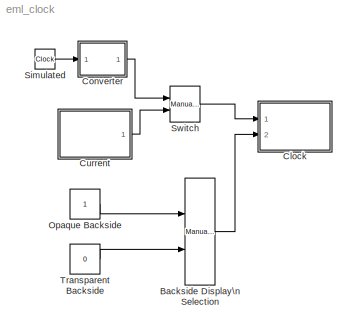
MODEL eml_clock
KIND model
CONFIG StopFcn = obj = findobj( 'Tag', 'emlclock_fig');\nif ~isempty(obj),\n   close(obj);\nend;
BLOCK [Reference] Backside Display\nSelection  REF=simulink/Signal\nRouting/Manual Switch
  Ports = [2, 1]
  ShowPortLabels = on
  SourceBlock = simulink/Signal\nRouting/Manual Switch
  SourceType = Manual Switch
  action = 0
  sw = 1
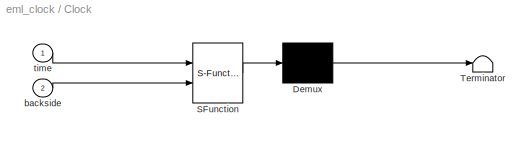
BLOCK [SubSystem] Clock
  MaskDescription = Embedded MATLAB block
  MaskDisplay = disp('emlclock');
  MaskIconFrame = on
  MaskIconOpaque = off
  MaskIconRotate = none
  MaskIconUnits = autoscale
  MaskSelfModifiable = on
  MaskType = Stateflow
  MinAlgLoopOccurrences = off
  Ports = [2]
  PropExecContextAcrossSSBoundary = on
  RTWSystemCode = Auto
  TreatAsAtomicUnit = off
BLOCK [Demux] Clock/ Demux 
  Outputs = 1
  Ports = [1, 1]
BLOCK [S-Function] Clock/ SFunction 
  FunctionName = sf_sfun
  PortCounts = [2 1]
  Ports = [2, 1]
  Tag = Stateflow S-Function eml_clock 2
BLOCK [Terminator] Clock/ Terminator 
BLOCK [Inport] Clock/backside
  IconDisplay = Port number
  LatchInput = off
  Port = 2
BLOCK [Inport] Clock/time
  IconDisplay = Port number
  LatchInput = off
  Port = 1
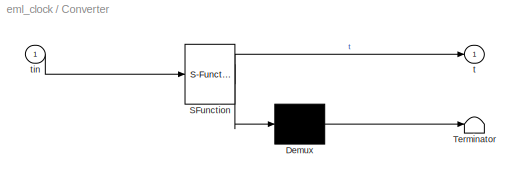
BLOCK [SubSystem] Converter
  MaskDescription = Embedded MATLAB block
  MaskDisplay = disp('conv');
  MaskIconFrame = on
  MaskIconOpaque = off
  MaskIconRotate = none
  MaskIconUnits = autoscale
  MaskSelfModifiable = on
  MaskType = Stateflow
  MinAlgLoopOccurrences = off
  Ports = [1, 1]
  PropExecContextAcrossSSBoundary = on
  RTWSystemCode = Auto
  TreatAsAtomicUnit = off
BLOCK [Demux] Converter/ Demux 
  Outputs = 1
  Ports = [1, 1]
BLOCK [S-Function] Converter/ SFunction 
  FunctionName = sf_sfun
  PortCounts = [1 2]
  Ports = [1, 2]
  Tag = Stateflow S-Function eml_clock 3
BLOCK [Terminator] Converter/ Terminator 
BLOCK [Outport] Converter/t
  BusOutputAsStruct = off
  IconDisplay = Port number
BLOCK [Inport] Converter/tin
  IconDisplay = Port number
  LatchInput = off
  Port = 1
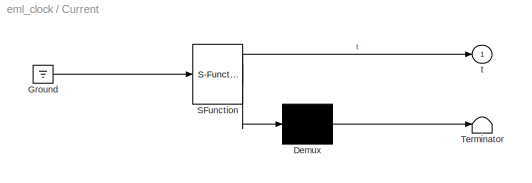
BLOCK [SubSystem] Current
  MaskDescription = Embedded MATLAB block
  MaskDisplay = disp('time');
  MaskIconFrame = on
  MaskIconOpaque = off
  MaskIconRotate = none
  MaskIconUnits = autoscale
  MaskSelfModifiable = on
  MaskType = Stateflow
  MinAlgLoopOccurrences = off
  Ports = [0, 1]
  PropExecContextAcrossSSBoundary = on
  RTWSystemCode = Auto
  TreatAsAtomicUnit = off
BLOCK [Demux] Current/ Demux 
  Outputs = 1
  Ports = [1, 1]
BLOCK [Ground] Current/ Ground 
BLOCK [S-Function] Current/ SFunction 
  FunctionName = sf_sfun
  PortCounts = [1 2]
  Ports = [1, 2]
  Tag = Stateflow S-Function eml_clock 1
BLOCK [Terminator] Current/ Terminator 
BLOCK [Outport] Current/t
  BusOutputAsStruct = off
  IconDisplay = Port number
BLOCK [Constant] Opaque Backside
  OutDataTypeMode = double
BLOCK [Clock] Simulated
  Decimation = 10
BLOCK [Reference] Switch  REF=simulink/Signal\nRouting/Manual Switch
  Ports = [2, 1]
  ShowPortLabels = on
  SourceBlock = simulink/Signal\nRouting/Manual Switch
  SourceType = Manual Switch
  action = 0
  sw = 0
BLOCK [Constant] Transparent Backside
  OutDataTypeMode = double
  Value = 0
LINE Backside Display\nSelection:1 -> Clock:2
LINE Clock/ Demux :1 -> Clock/ Terminator :1
LINE Clock/ SFunction :1 -> Clock/ Demux :1
LINE Clock/backside:1 -> Clock/ SFunction :2
LINE Clock/time:1 -> Clock/ SFunction :1
LINE Converter/ Demux :1 -> Converter/ Terminator :1
LINE Converter/ SFunction :1 -> Converter/ Demux :1
LINE Converter/ SFunction :2 -> Converter/t:1
LINE Converter/tin:1 -> Converter/ SFunction :1
LINE Converter:1 -> Switch:1
LINE Current/ Demux :1 -> Current/ Terminator :1
LINE Current/ Ground :1 -> Current/ SFunction :1
LINE Current/ SFunction :1 -> Current/ Demux :1
LINE Current/ SFunction :2 -> Current/t:1
LINE Current:1 -> Switch:2
LINE Opaque Backside:1 -> Backside Display\nSelection:1
LINE Simulated:1 -> Converter:1
LINE Switch:1 -> Clock:1
LINE Transparent Backside:1 -> Backside Display\nSelection:2
CHART Current states=1 transitions=1
  STATE_LABEL 'eML_blk_kernel()'
CHART Clock states=1 transitions=1
  STATE_LABEL 'eML_blk_kernel()'
CHART Converter states=1 transitions=1
  STATE_LABEL 'eML_blk_kernel()'
